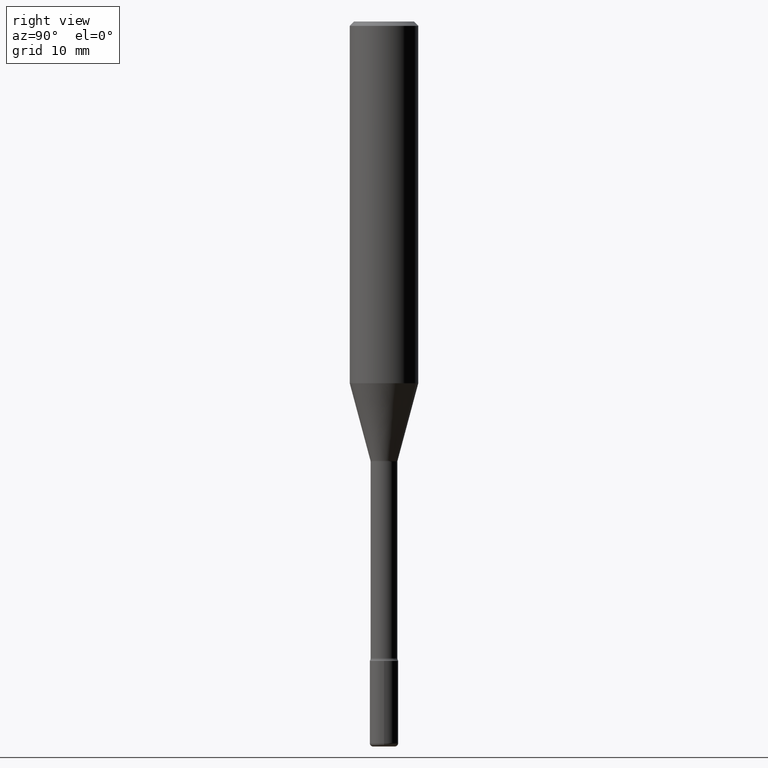
[diagram: clean part render]
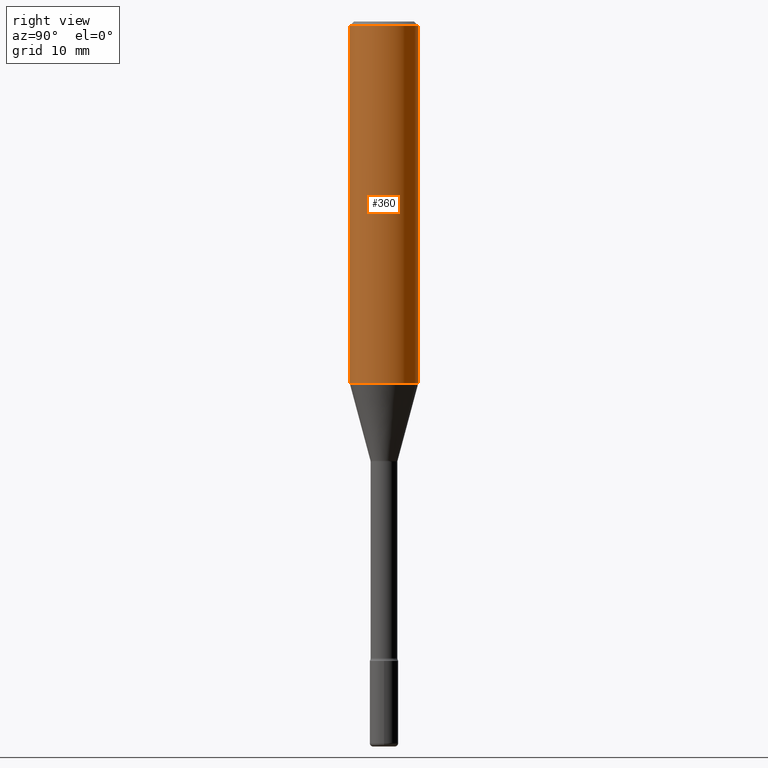
[diagram: same view with one face highlighted and labeled with its STEP entity id]
A machine part, right view. The second image highlights one B-rep face of the part: STEP entity #360.
In plain terms, the highlighted cylindrical surface (edge-blend (fillet) strip) has radius 2.9997 mm, axis along (-0, 0, 1).
Its self-contained STEP definition (entity closure, byte-faithful):
#36 = FACE_OUTER_BOUND ( 'NONE', #316, .T. ) ;
#38 = CARTESIAN_POINT ( 'NONE',  ( -1.169113584055446105E-44, 1.669184350826100908E-30, 4.780733988912460139E-16 ) ) ;
#41 = CIRCLE ( 'NONE', #136, 0.1180999999999999966 ) ;
#44 = EDGE_CURVE ( 'NONE', #195, #308, #167, .T. ) ;
#53 = LINE ( 'NONE', #174, #379 ) ;
#57 = DIRECTION ( 'NONE',  ( -2.445721087227316555E-29, 3.491120058031798950E-15, 1.000000000000000000 ) ) ;
#58 = ORIENTED_EDGE ( 'NONE', *, *, #268, .F. ) ;
#64 = DIRECTION ( 'NONE',  ( -2.445721087227316555E-29, 3.491120058031798950E-15, 1.000000000000000000 ) ) ;
#79 = DIRECTION ( 'NONE',  ( -2.445721087227316555E-29, 3.491120058031798950E-15, 1.000000000000000000 ) ) ;
#80 = DIRECTION ( 'NONE',  ( -6.982962677686265922E-15, -1.000000000000000000, 3.487819265831411744E-15 ) ) ;
#86 = DIRECTION ( 'NONE',  ( -6.982962677686265922E-15, -1.000000000000000000, 3.491120058031799739E-15 ) ) ;
#96 = VERTEX_POINT ( 'NONE', #194 ) ;
#104 = LINE ( 'NONE', #424, #414 ) ;
#119 = CARTESIAN_POINT ( 'NONE',  ( 3.051164599389650582E-29, -4.355354332476965725E-15, -1.247552149476176764 ) ) ;
#125 = DIRECTION ( 'NONE',  ( -2.445721087227316555E-29, 3.491120058031798950E-15, 1.000000000000000000 ) ) ;
#127 = ORIENTED_EDGE ( 'NONE', *, *, #282, .T. ) ;
#136 = AXIS2_PLACEMENT_3D ( 'NONE', #119, #64, #479 ) ;
#162 = CARTESIAN_POINT ( 'NONE',  ( -8.246878922347475723E-16, -0.1181000000000000522, -0.01499999999999961607 ) ) ;
#167 = CIRCLE ( 'NONE', #494, 0.1180999999999999966 ) ;
#174 = CARTESIAN_POINT ( 'NONE',  ( 8.391509709326781971E-16, 0.1180999999999999966, 6.577212003769061022E-17 ) ) ;
#194 = CARTESIAN_POINT ( 'NONE',  ( -8.246878922347172998E-16, -0.1181000000000043126, -1.247552149476176320 ) ) ;
#195 = VERTEX_POINT ( 'NONE', #162 ) ;
#230 = ORIENTED_EDGE ( 'NONE', *, *, #44, .F. ) ;
#268 = EDGE_CURVE ( 'NONE', #96, #195, #104, .T. ) ;
#282 = EDGE_CURVE ( 'NONE', #96, #496, #41, .T. ) ;
#287 = ORIENTED_EDGE ( 'NONE', *, *, #495, .T. ) ;
#308 = VERTEX_POINT ( 'NONE', #531 ) ;
#312 = CARTESIAN_POINT ( 'NONE',  ( 8.391509709327088641E-16, 0.1180999999999956807, -1.247552149476177430 ) ) ;
#316 = EDGE_LOOP ( 'NONE', ( #127, #287, #230, #58 ) ) ;
#360 = ADVANCED_FACE ( 'NONE', ( #36 ), #530, .T. ) ;
#379 = VECTOR ( 'NONE', #543, 39.37007874015748143 ) ;
#414 = VECTOR ( 'NONE', #57, 39.37007874015748143 ) ;
#424 = CARTESIAN_POINT ( 'NONE',  ( -8.246878922347479668E-16, -0.1180999999999999966, 8.903746777448015409E-16 ) ) ;
#443 = CARTESIAN_POINT ( 'NONE',  ( 3.668581630840980928E-31, -5.236680087047708706E-17, -0.01500000000000002720 ) ) ;
#479 = DIRECTION ( 'NONE',  ( -6.982962677686265922E-15, -1.000000000000000000, 4.626330217890369336E-15 ) ) ;
#494 = AXIS2_PLACEMENT_3D ( 'NONE', #443, #125, #80 ) ;
#495 = EDGE_CURVE ( 'NONE', #496, #308, #53, .T. ) ;
#496 = VERTEX_POINT ( 'NONE', #312 ) ;
#530 = CYLINDRICAL_SURFACE ( 'NONE', #549, 0.1180999999999999966 ) ;
#531 = CARTESIAN_POINT ( 'NONE',  ( 8.391509709327088641E-16, 0.1180999999999999411, -0.01500000000000044006 ) ) ;
#543 = DIRECTION ( 'NONE',  ( -2.445721087227316555E-29, 3.491120058031798950E-15, 1.000000000000000000 ) ) ;
#549 = AXIS2_PLACEMENT_3D ( 'NONE', #38, #79, #86 ) ;